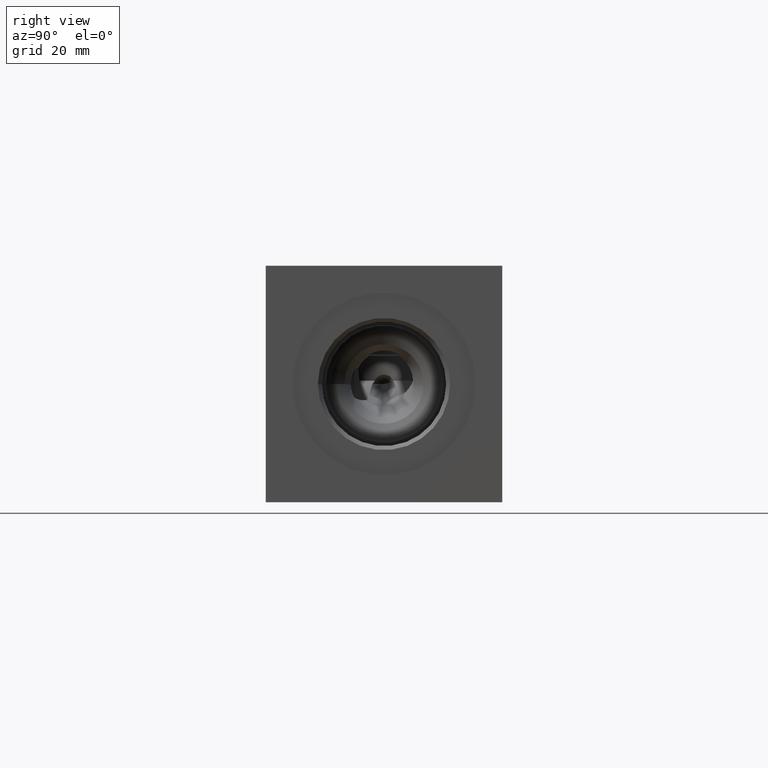
[diagram: clean part render]
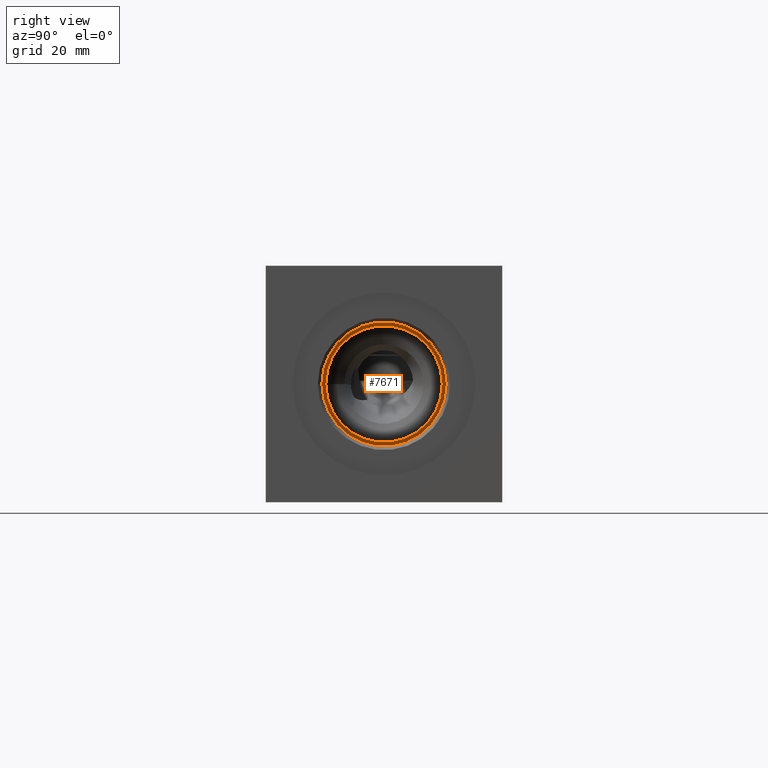
[diagram: same view with one face highlighted and labeled with its STEP entity id]
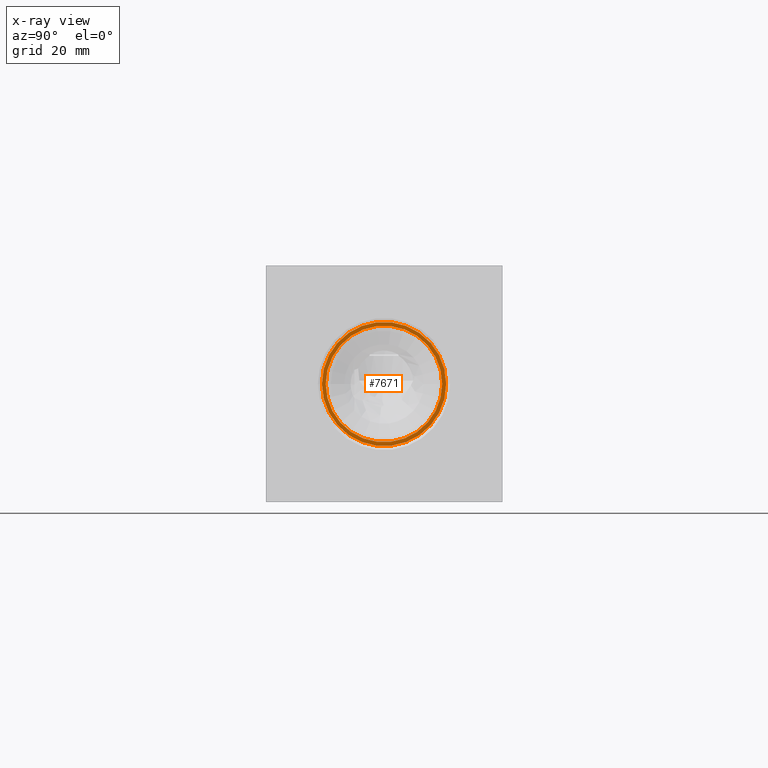
[diagram: x-ray of the same camera — body ghosted, the highlighted face saturated]
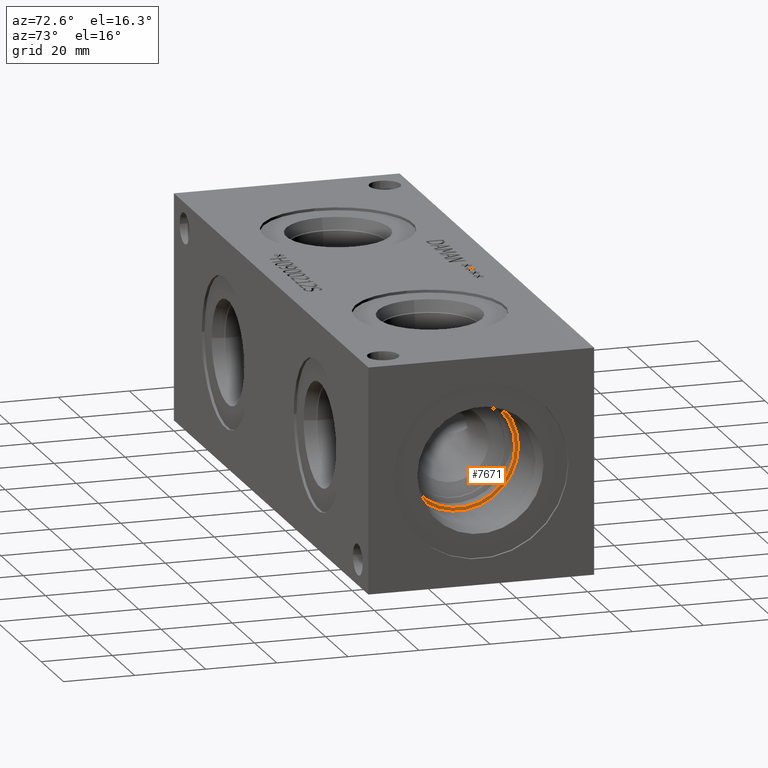
[diagram: same view with one face highlighted and labeled with its STEP entity id]
A machine part, right view. The second image highlights one B-rep face of the part: STEP entity #7671.
The next image is the same camera in x-ray: the body ghosted, the highlighted face saturated — about 0% of this face is hidden behind the body in this view.
A second angle (auxiliary view) of the same face is appended — the face is thin or edge-on in the first view.
In plain terms, the highlighted planar face has unit normal (1, 0, 0).
Its self-contained STEP definition (entity closure, byte-faithful):
#107=CIRCLE('',#7991,16.6751);
#108=CIRCLE('',#7992,16.6751);
#109=CIRCLE('',#7993,15.6337);
#245=FACE_BOUND('',#1334,.T.);
#910=FACE_OUTER_BOUND('',#1333,.T.);
#1333=EDGE_LOOP('',(#6389,#6390));
#1334=EDGE_LOOP('',(#6391));
#3447=VERTEX_POINT('',#12855);
#3448=VERTEX_POINT('',#12856);
#3449=VERTEX_POINT('',#12859);
#4455=EDGE_CURVE('',#3447,#3448,#107,.T.);
#4456=EDGE_CURVE('',#3448,#3447,#108,.T.);
#4457=EDGE_CURVE('',#3449,#3449,#109,.T.);
#6389=ORIENTED_EDGE('',*,*,#4455,.T.);
#6390=ORIENTED_EDGE('',*,*,#4456,.T.);
#6391=ORIENTED_EDGE('',*,*,#4457,.F.);
#7038=PLANE('',#7990);
#7671=ADVANCED_FACE('',(#910,#245),#7038,.T.);
#7990=AXIS2_PLACEMENT_3D('',#12854,#9294,#9295);
#7991=AXIS2_PLACEMENT_3D('',#12857,#9296,#9297);
#7992=AXIS2_PLACEMENT_3D('',#12858,#9298,#9299);
#7993=AXIS2_PLACEMENT_3D('',#12860,#9300,#9301);
#9294=DIRECTION('center_axis',(1.,0.,0.));
#9295=DIRECTION('ref_axis',(0.,1.,0.));
#9296=DIRECTION('center_axis',(1.,0.,0.));
#9297=DIRECTION('ref_axis',(0.,1.,0.));
#9298=DIRECTION('center_axis',(1.,0.,0.));
#9299=DIRECTION('ref_axis',(0.,1.,0.));
#9300=DIRECTION('center_axis',(1.,0.,0.));
#9301=DIRECTION('ref_axis',(0.,1.,0.));
#12854=CARTESIAN_POINT('Origin',(154.7876,31.75,31.75));
#12855=CARTESIAN_POINT('',(154.7876,48.4251,31.75));
#12856=CARTESIAN_POINT('',(154.7876,15.0749,31.75));
#12857=CARTESIAN_POINT('Origin',(154.7876,31.75,31.75));
#12858=CARTESIAN_POINT('Origin',(154.7876,31.75,31.75));
#12859=CARTESIAN_POINT('',(154.7876,16.1163,31.75));
#12860=CARTESIAN_POINT('Origin',(154.7876,31.75,31.75));